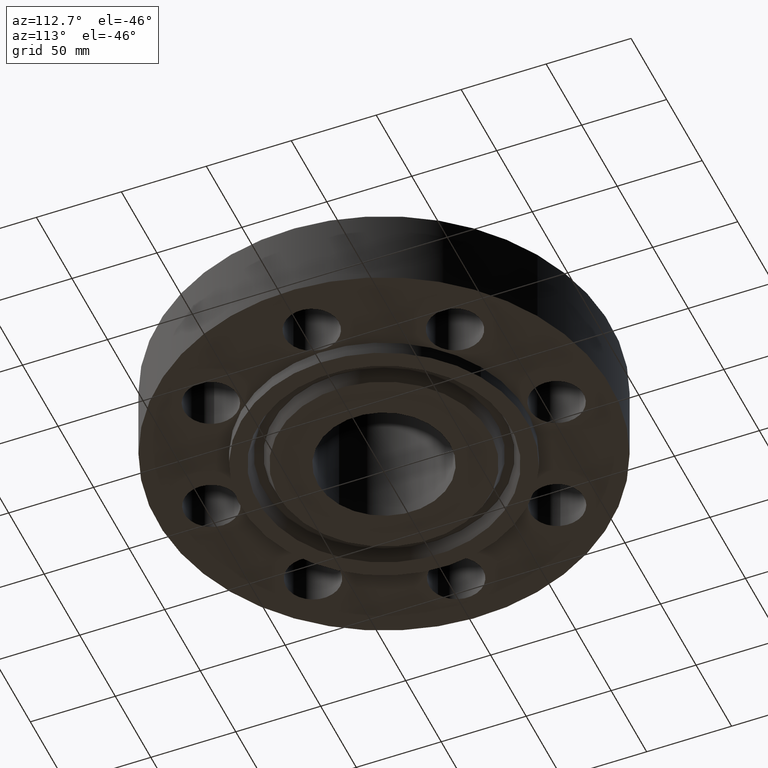
[diagram: clean part render]
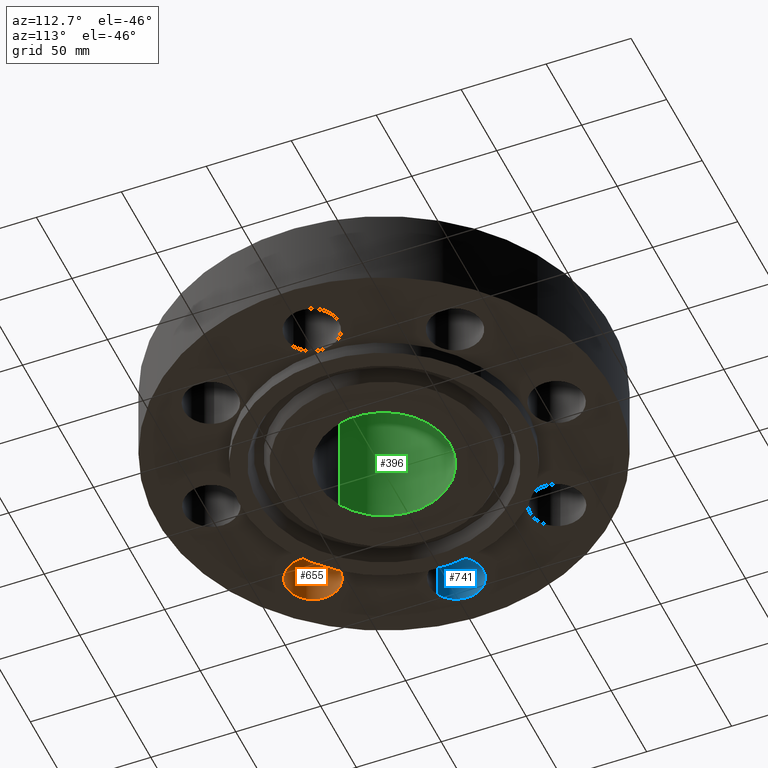
[diagram: same view with three faces highlighted in distinct colors, each labeled with its STEP entity id]
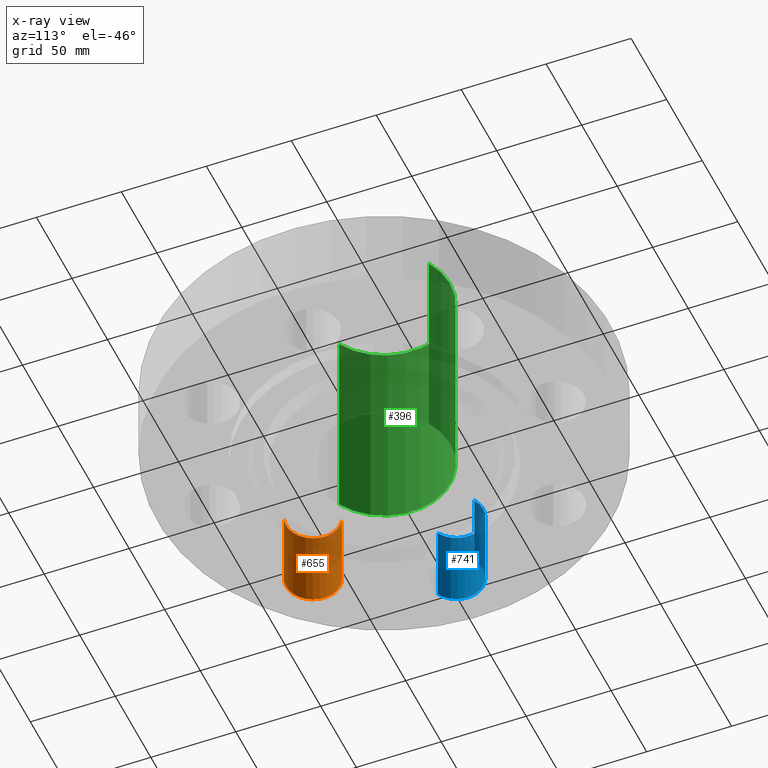
[diagram: x-ray of the same camera — body ghosted, the three highlighted faces saturated]
A machine part, auxiliary view with three faces highlighted in distinct colors.
The next image is the same camera in x-ray (body ghosted, the three faces saturated) — at least one of them is partly hidden behind the body in this view.
Their STEP definitions:

[orange] entity #655 — the highlighted cylindrical surface (edge-blend (fillet) strip) has radius 15.875 mm, axis along (0, 0, -1).
#572=AXIS2_PLACEMENT_3D('Circle Axis2P3D',#570,#571,$) ;
#628=AXIS2_PLACEMENT_3D('Cylinder Axis2P3D',#625,#626,#627) ;
#646=AXIS2_PLACEMENT_3D('Circle Axis2P3D',#644,#645,$) ;
#570=CARTESIAN_POINT('Axis2P3D Location',(-2.82842712476,-2.82842712476,0.)) ;
#574=CARTESIAN_POINT('Vertex',(-2.65246491779,-3.4281456435,0.)) ;
#576=CARTESIAN_POINT('Vertex',(-3.00438933172,-2.22870860601,0.)) ;
#625=CARTESIAN_POINT('Axis2P3D Location',(-2.82842712476,-2.82842712476,1.87606299213)) ;
#630=CARTESIAN_POINT('Line Origine',(-2.65246491779,-3.4281456435,0.940000000004)) ;
#634=CARTESIAN_POINT('Vertex',(-2.65246491779,-3.4281456435,1.88000000001)) ;
#637=CARTESIAN_POINT('Line Origine',(-3.00438933172,-2.22870860601,0.940000000004)) ;
#641=CARTESIAN_POINT('Vertex',(-3.00438933172,-2.22870860601,1.88000000001)) ;
#644=CARTESIAN_POINT('Axis2P3D Location',(-2.82842712476,-2.82842712476,1.88000000001)) ;
#571=DIRECTION('Axis2P3D Direction',(0.,0.,-0.0393700787402)) ;
#626=DIRECTION('Axis2P3D Direction',(0.,0.,-0.0393700787402)) ;
#627=DIRECTION('Axis2P3D XDirection',(-0.0110842335096,0.0377775444876,0.)) ;
#631=DIRECTION('Vector Direction',(0.,0.,-0.0393700787402)) ;
#638=DIRECTION('Vector Direction',(0.,0.,-0.0393700787402)) ;
#645=DIRECTION('Axis2P3D Direction',(0.,0.,-0.0393700787402)) ;
#632=VECTOR('Line Direction',#631,0.0393700787402) ;
#639=VECTOR('Line Direction',#638,0.0393700787402) ;
#650=ORIENTED_EDGE('',*,*,#636,.F.) ;
#651=ORIENTED_EDGE('',*,*,#578,.T.) ;
#652=ORIENTED_EDGE('',*,*,#643,.T.) ;
#653=ORIENTED_EDGE('',*,*,#648,.F.) ;
#655=ADVANCED_FACE('PartBody',(#654),#629,.F.) ;
#573=CIRCLE('generated circle',#572,0.625000000002) ;
#647=CIRCLE('generated circle',#646,0.625000000002) ;
#629=CYLINDRICAL_SURFACE('generated cylinder',#628,0.625000000002) ;
#578=EDGE_CURVE('',#575,#577,#573,.T.) ;
#636=EDGE_CURVE('',#575,#635,#633,.F.) ;
#643=EDGE_CURVE('',#577,#642,#640,.F.) ;
#648=EDGE_CURVE('',#635,#642,#647,.T.) ;
#649=EDGE_LOOP('',(#650,#651,#652,#653)) ;
#654=FACE_OUTER_BOUND('',#649,.T.) ;
#633=LINE('Line',#630,#632) ;
#640=LINE('Line',#637,#639) ;
#575=VERTEX_POINT('',#574) ;
#577=VERTEX_POINT('',#576) ;
#635=VERTEX_POINT('',#634) ;
#642=VERTEX_POINT('',#641) ;

[blue] entity #741 — the highlighted cylindrical surface (edge-blend (fillet) strip) has radius 15.875 mm, axis along (0, 0, -1).
#590=AXIS2_PLACEMENT_3D('Circle Axis2P3D',#588,#589,$) ;
#714=AXIS2_PLACEMENT_3D('Cylinder Axis2P3D',#711,#712,#713) ;
#732=AXIS2_PLACEMENT_3D('Circle Axis2P3D',#730,#731,$) ;
#588=CARTESIAN_POINT('Axis2P3D Location',(-4.00000000002,0.,0.)) ;
#592=CARTESIAN_POINT('Vertex',(-4.29964096164,-0.548489101184,0.)) ;
#594=CARTESIAN_POINT('Vertex',(-3.70035903839,0.548489101184,0.)) ;
#711=CARTESIAN_POINT('Axis2P3D Location',(-4.00000000002,-1.75305610389E-016,1.87606299213)) ;
#716=CARTESIAN_POINT('Line Origine',(-4.29964096164,-0.548489101184,0.940000000004)) ;
#720=CARTESIAN_POINT('Vertex',(-4.29964096164,-0.548489101184,1.88000000001)) ;
#723=CARTESIAN_POINT('Line Origine',(-3.70035903839,0.548489101184,0.940000000004)) ;
#727=CARTESIAN_POINT('Vertex',(-3.70035903839,0.548489101184,1.88000000001)) ;
#730=CARTESIAN_POINT('Axis2P3D Location',(-4.00000000002,-1.75305610389E-016,1.88000000001)) ;
#589=DIRECTION('Axis2P3D Direction',(0.,0.,-0.0393700787402)) ;
#712=DIRECTION('Axis2P3D Direction',(0.,0.,-0.0393700787402)) ;
#713=DIRECTION('Axis2P3D XDirection',(0.0188750212049,0.0345504945626,0.)) ;
#717=DIRECTION('Vector Direction',(0.,0.,-0.0393700787402)) ;
#724=DIRECTION('Vector Direction',(0.,0.,-0.0393700787402)) ;
#731=DIRECTION('Axis2P3D Direction',(0.,0.,-0.0393700787402)) ;
#718=VECTOR('Line Direction',#717,0.0393700787402) ;
#725=VECTOR('Line Direction',#724,0.0393700787402) ;
#736=ORIENTED_EDGE('',*,*,#722,.F.) ;
#737=ORIENTED_EDGE('',*,*,#596,.T.) ;
#738=ORIENTED_EDGE('',*,*,#729,.T.) ;
#739=ORIENTED_EDGE('',*,*,#734,.F.) ;
#741=ADVANCED_FACE('PartBody',(#740),#715,.F.) ;
#591=CIRCLE('generated circle',#590,0.625000000003) ;
#733=CIRCLE('generated circle',#732,0.625000000003) ;
#715=CYLINDRICAL_SURFACE('generated cylinder',#714,0.625000000003) ;
#596=EDGE_CURVE('',#593,#595,#591,.T.) ;
#722=EDGE_CURVE('',#593,#721,#719,.F.) ;
#729=EDGE_CURVE('',#595,#728,#726,.F.) ;
#734=EDGE_CURVE('',#721,#728,#733,.T.) ;
#735=EDGE_LOOP('',(#736,#737,#738,#739)) ;
#740=FACE_OUTER_BOUND('',#735,.T.) ;
#719=LINE('Line',#716,#718) ;
#726=LINE('Line',#723,#725) ;
#593=VERTEX_POINT('',#592) ;
#595=VERTEX_POINT('',#594) ;
#721=VERTEX_POINT('',#720) ;
#728=VERTEX_POINT('',#727) ;

[green] entity #396 — the highlighted cylindrical surface (partial cylindrical patch) has radius 38.9636 mm, axis along (0, 0, -1).
#343=AXIS2_PLACEMENT_3D('Cylinder Axis2P3D',#340,#341,#342) ;
#382=AXIS2_PLACEMENT_3D('Circle Axis2P3D',#380,#381,$) ;
#387=AXIS2_PLACEMENT_3D('Circle Axis2P3D',#385,#386,$) ;
#340=CARTESIAN_POINT('Axis2P3D Location',(0.,0.,2.15350000001)) ;
#349=CARTESIAN_POINT('Vertex',(0.735438776222,1.34621164995,4.62000000002)) ;
#351=CARTESIAN_POINT('Vertex',(-0.735438776222,-1.34621164995,4.62000000002)) ;
#354=CARTESIAN_POINT('Line Origine',(0.735438776222,1.34621164995,2.15350000001)) ;
#358=CARTESIAN_POINT('Vertex',(0.735438776222,1.34621164995,-0.313000000001)) ;
#365=CARTESIAN_POINT('Vertex',(-0.735438776222,-1.34621164995,-0.313000000001)) ;
#368=CARTESIAN_POINT('Line Origine',(-0.735438776222,-1.34621164995,2.15350000001)) ;
#380=CARTESIAN_POINT('Axis2P3D Location',(0.,0.,4.62000000002)) ;
#385=CARTESIAN_POINT('Axis2P3D Location',(0.,0.,-0.313000000001)) ;
#341=DIRECTION('Axis2P3D Direction',(0.,0.,-0.0393700787402)) ;
#342=DIRECTION('Axis2P3D XDirection',(-0.0188750212049,-0.0345504945626,0.)) ;
#355=DIRECTION('Vector Direction',(0.,0.,-0.0393700787402)) ;
#369=DIRECTION('Vector Direction',(0.,0.,-0.0393700787402)) ;
#381=DIRECTION('Axis2P3D Direction',(0.,0.,-0.0393700787402)) ;
#386=DIRECTION('Axis2P3D Direction',(0.,0.,-0.0393700787402)) ;
#356=VECTOR('Line Direction',#355,0.0393700787402) ;
#370=VECTOR('Line Direction',#369,0.0393700787402) ;
#391=ORIENTED_EDGE('',*,*,#384,.F.) ;
#392=ORIENTED_EDGE('',*,*,#372,.T.) ;
#393=ORIENTED_EDGE('',*,*,#389,.T.) ;
#394=ORIENTED_EDGE('',*,*,#360,.F.) ;
#396=ADVANCED_FACE('PartBody',(#395),#344,.F.) ;
#383=CIRCLE('generated circle',#382,1.53400000001) ;
#388=CIRCLE('generated circle',#387,1.53400000001) ;
#344=CYLINDRICAL_SURFACE('generated cylinder',#343,1.53400000001) ;
#360=EDGE_CURVE('',#350,#359,#357,.T.) ;
#372=EDGE_CURVE('',#352,#366,#371,.T.) ;
#384=EDGE_CURVE('',#352,#350,#383,.T.) ;
#389=EDGE_CURVE('',#366,#359,#388,.T.) ;
#390=EDGE_LOOP('',(#391,#392,#393,#394)) ;
#395=FACE_OUTER_BOUND('',#390,.T.) ;
#357=LINE('Line',#354,#356) ;
#371=LINE('Line',#368,#370) ;
#350=VERTEX_POINT('',#349) ;
#352=VERTEX_POINT('',#351) ;
#359=VERTEX_POINT('',#358) ;
#366=VERTEX_POINT('',#365) ;